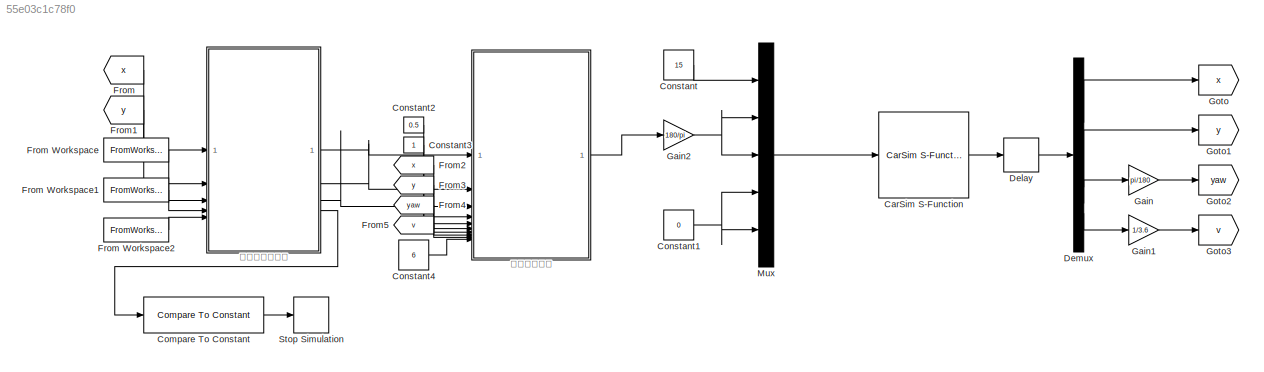
MODEL slx_55e03c1c78f0
KIND model
CONFIG AbsTol = auto
CONFIG EnableMultiTasking = off
CONFIG FixedStep = auto
CONFIG MaxStep = auto
CONFIG MinStep = auto
CONFIG RelTol = 1e-3
CONFIG SampleTimeConstraint = Unconstrained
CONFIG SolverName = VariableStepAuto
CONFIG StartTime = 0.0
CONFIG StopTime = 60
BLOCK [Reference] CarSim S-Function  REF=Solver_SF/CarSim S-Function
  Priority = 1
  SourceBlock = Solver_SF/CarSim S-Function
  SourceProductName = CarSim S-Function
  SourceType = Vehicle math model library
BLOCK [Reference] Compare To Constant  REF=simulink/Logic and Bit
Operations/Compare
To Constant
  SourceBlock = simulink/Logic and Bit\nOperations/Compare\nTo Constant
  SourceType = Compare To Constant
BLOCK [Constant] Constant
  Value = 15
BLOCK [Constant] Constant1
  Value = 0
BLOCK [Constant] Constant2
  Value = 0.5
BLOCK [Constant] Constant3
BLOCK [Constant] Constant4
  Value = 6
BLOCK [Delay] Delay
  DelayLength = 1
  InputPortMap = u0
BLOCK [Demux] Demux
BLOCK [From] From
  GotoTag = x
BLOCK [FromWorkspace] From Workspace
  VariableName = cx
BLOCK [FromWorkspace] From Workspace1
  VariableName = cy
BLOCK [FromWorkspace] From Workspace2
  VariableName = r_yaw
BLOCK [From] From1
  GotoTag = y
BLOCK [From] From2
  GotoTag = x
BLOCK [From] From3
  GotoTag = y
BLOCK [From] From4
  GotoTag = yaw
BLOCK [From] From5
  GotoTag = v
BLOCK [Gain] Gain
  Gain = pi/180
BLOCK [Gain] Gain1
  Gain = 1/3.6
BLOCK [Gain] Gain2
  Gain = 180/pi
BLOCK [Goto] Goto
  GotoTag = x
BLOCK [Goto] Goto1
  GotoTag = y
BLOCK [Goto] Goto2
  GotoTag = yaw
BLOCK [Goto] Goto3
  GotoTag = v
BLOCK [Mux] Mux
  DisplayOption = bar
  Inputs = 5
BLOCK [Stop] Stop Simulation
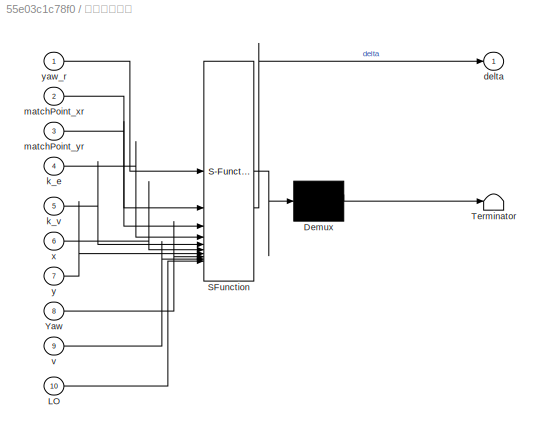
BLOCK [SubSystem] 计算前轮转角
  ErrorFcn = Stateflow.Translate.translate
  LibrarySourceBlock = simulink/User-Defined\nFunctions/MATLAB Function
  PermitHierarchicalResolution = ExplicitOnly
  SFBlockType = MATLAB Function
  TreatAsAtomicUnit = on
BLOCK [Demux] 计算前轮转角/ Demux 
  Outputs = 1
BLOCK [S-Function] 计算前轮转角/ SFunction 
  EnableBusSupport = on
  FunctionName = sf_sfun
  PortCounts = [10 2]
  SFcnIsStateOwnerBlock = off
  SFunctionDeploymentMode = off
  Tag = Stateflow S-Function 1
BLOCK [Terminator] 计算前轮转角/ Terminator 
BLOCK [Inport] 计算前轮转角/LO
  Port = 10
BLOCK [Inport] 计算前轮转角/Yaw
  Port = 8
BLOCK [Outport] 计算前轮转角/delta
BLOCK [Inport] 计算前轮转角/k_e
  Port = 4
BLOCK [Inport] 计算前轮转角/k_v
  Port = 5
BLOCK [Inport] 计算前轮转角/matchPoint_xr
  Port = 2
BLOCK [Inport] 计算前轮转角/matchPoint_yr
  Port = 3
BLOCK [Inport] 计算前轮转角/v
  Port = 9
BLOCK [Inport] 计算前轮转角/x
  Port = 6
BLOCK [Inport] 计算前轮转角/y
  Port = 7
BLOCK [Inport] 计算前轮转角/yaw_r
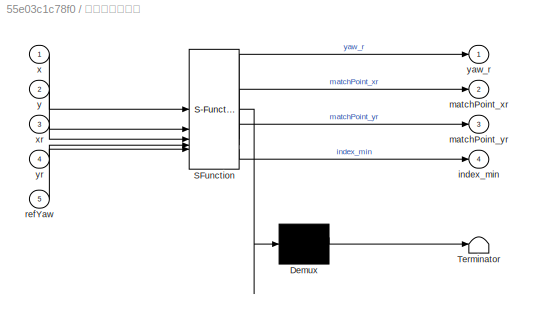
BLOCK [SubSystem] 计算匹配点信息
  ErrorFcn = Stateflow.Translate.translate
  LibrarySourceBlock = simulink/User-Defined\nFunctions/MATLAB Function
  PermitHierarchicalResolution = ExplicitOnly
  SFBlockType = MATLAB Function
  TreatAsAtomicUnit = on
BLOCK [Demux] 计算匹配点信息/ Demux 
  Outputs = 1
BLOCK [S-Function] 计算匹配点信息/ SFunction 
  EnableBusSupport = on
  FunctionName = sf_sfun
  PortCounts = [5 5]
  SFcnIsStateOwnerBlock = off
  SFunctionDeploymentMode = off
  Tag = Stateflow S-Function 2
BLOCK [Terminator] 计算匹配点信息/ Terminator 
BLOCK [Outport] 计算匹配点信息/index_min
  Port = 4
BLOCK [Outport] 计算匹配点信息/matchPoint_xr
  Port = 2
BLOCK [Outport] 计算匹配点信息/matchPoint_yr
  Port = 3
BLOCK [Inport] 计算匹配点信息/refYaw
  Port = 5
BLOCK [Inport] 计算匹配点信息/x
BLOCK [Inport] 计算匹配点信息/xr
  Port = 3
BLOCK [Inport] 计算匹配点信息/y
  Port = 2
BLOCK [Outport] 计算匹配点信息/yaw_r
BLOCK [Inport] 计算匹配点信息/yr
  Port = 4
LINE CarSim S-Function:1 -> Delay:1
LINE Compare To Constant:1 -> Stop Simulation:1
NET Constant1:1 -> Mux:4, Mux:5
LINE Constant2:1 -> 计算前轮转角:4
LINE Constant3:1 -> 计算前轮转角:5
LINE Constant4:1 -> 计算前轮转角:10
LINE Constant:1 -> Mux:1
LINE Delay:1 -> Demux:1
LINE Demux:1 -> Goto:1
LINE Demux:2 -> Goto1:1
LINE Demux:3 -> Gain:1
LINE Demux:4 -> Gain1:1
LINE From Workspace1:1 -> 计算匹配点信息:4
LINE From Workspace2:1 -> 计算匹配点信息:5
LINE From Workspace:1 -> 计算匹配点信息:3
LINE From1:1 -> 计算匹配点信息:2
LINE From2:1 -> 计算前轮转角:6
LINE From3:1 -> 计算前轮转角:7
LINE From4:1 -> 计算前轮转角:8
LINE From5:1 -> 计算前轮转角:9
LINE From:1 -> 计算匹配点信息:1
LINE Gain1:1 -> Goto3:1
NET Gain2:1 -> Mux:2, Mux:3
LINE Gain:1 -> Goto2:1
LINE Mux:1 -> CarSim S-Function:1
LINE 计算前轮转角:1 -> Gain2:1
LINE 计算匹配点信息:1 -> 计算前轮转角:1
LINE 计算匹配点信息:2 -> 计算前轮转角:2
LINE 计算匹配点信息:3 -> 计算前轮转角:3
LINE 计算匹配点信息:4 -> Compare To Constant:1
note: NET lines group one-source signal fan-out (src -> all destinations, sorted); 1:1 wires keep LINE
CHART 计算前轮转角 states=1 transitions=1
  STATE_LABEL 'eML_blk_kernel()'
  STATE_LABEL 'SCRIPT:\nfunction delta = calculate_delta_f(yaw_r,matchPoint_xr,matchPoint_yr,k_e,k_v,x,y,Yaw,v,LO)\n%*******************CarSim转角向左为正*************************************\n    %横向误差：两点距离\n    e_y=sqrt((x-matchPoint_xr)^2+(y-matchPoint_yr)^2);\n\n    %判断转向：转换到车辆坐标系下的 纵坐标 正负，小于0，需要向右拐，让其为负值\n    dx=x-matchPoint_xr;\n    dy=y-matchPoint_yr;\n    L_R = dy*cos(Yaw) - dx*sin(Yaw);\n\n    if L_R < 0\n       e_y = -e...<+648ch>'
CHART 计算匹配点信息 states=1 transitions=1
  STATE_LABEL 'eML_blk_kernel()'
  STATE_LABEL 'SCRIPT:\nfunction [yaw_r,matchPoint_xr, matchPoint_yr,index_min] = calculate_matchpoint(x,y, xr,yr,refYaw)\n    % 找到距离当前位置最近的一个参考轨迹点的序号\n    total_point=length(xr);\n    distance_min=(x-xr(1))^2+(y-yr(1))^2;\n    index_min=1;\n    for i = 1:total_point\n        d = (x-xr(i))^2+(y-yr(i))^2; \n        if d<distance_min\n            distance_min = d;\n            index_min=i;\n        end\n    end\n\n    %通过轨迹点序号得...<+120ch>'
CHART  states=0 transitions=0
CHART  states=0 transitions=0
